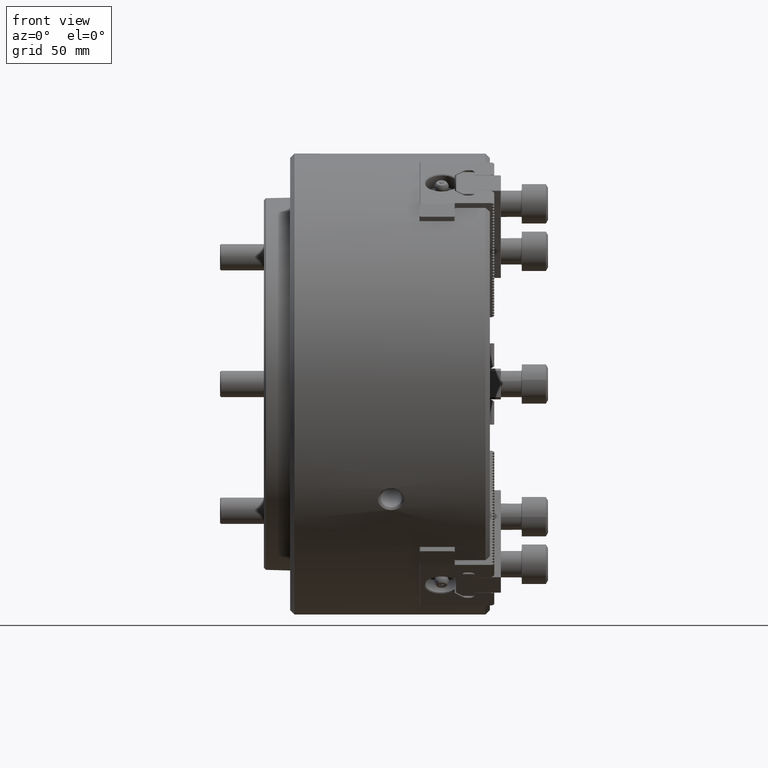
[diagram: clean part render]
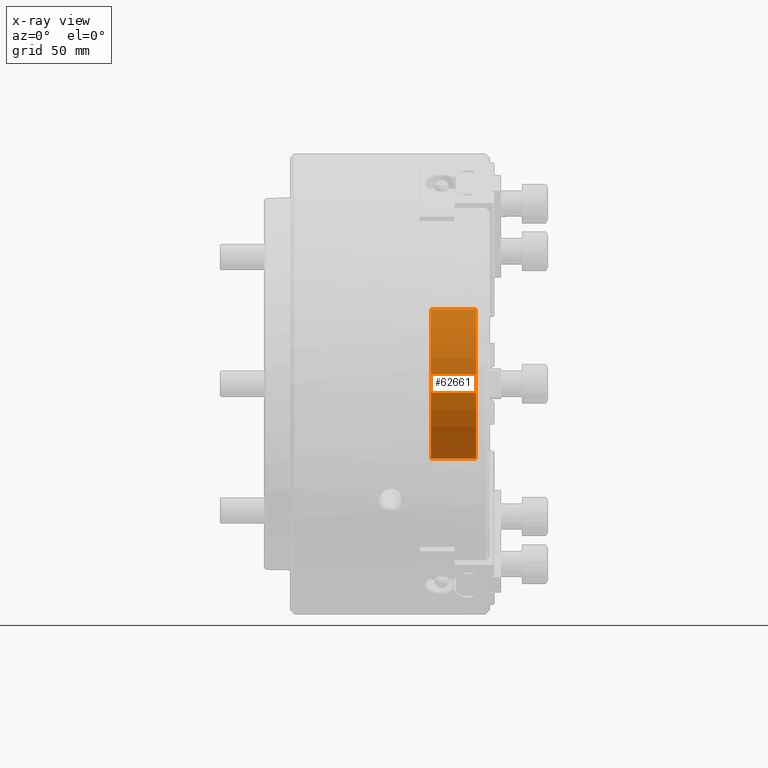
[diagram: x-ray — body ghosted, one internal face saturated and labeled with its STEP entity id]
A machine part, front view, then the same camera in x-ray: the body is ghosted and one INTERNAL B-rep face — a face not visible from any outside direction — is saturated and labeled: STEP entity #62661.
In plain terms, the highlighted cylindrical surface (bore or boss wall) has radius 34 mm, axis along (-1, 0, -0).
Its self-contained STEP definition (entity closure, byte-faithful):
#14626=ORIENTED_EDGE('',*,*,#26932,.F.);
#14627=ORIENTED_EDGE('',*,*,#26663,.T.);
#26663=EDGE_CURVE('',#33067,#33067,#37174,.T.);
#26932=EDGE_CURVE('',#33224,#33224,#37222,.T.);
#33067=VERTEX_POINT('',#83719);
#33224=VERTEX_POINT('',#84313);
#37174=CIRCLE('',#65615,34.);
#37222=CIRCLE('',#65760,34.);
#38634=EDGE_LOOP('',(#14626));
#38635=EDGE_LOOP('',(#14627));
#41683=FACE_BOUND('',#38634,.T.);
#41684=FACE_BOUND('',#38635,.T.);
#44270=CYLINDRICAL_SURFACE('',#65759,34.);
#62661=ADVANCED_FACE('',(#41683,#41684),#44270,.T.);
#65615=AXIS2_PLACEMENT_3D('',#83718,#70910,#70911);
#65759=AXIS2_PLACEMENT_3D('',#84311,#71368,#71369);
#65760=AXIS2_PLACEMENT_3D('',#84312,#71370,#71371);
#70910=DIRECTION('',(1.,0.,0.));
#70911=DIRECTION('',(0.,0.,-1.));
#71368=DIRECTION('',(-1.,4.01685946472933E-17,-5.31127384599706E-17));
#71369=DIRECTION('',(5.3145021955673E-17,0.000804127400808657,-0.999999676689509));
#71370=DIRECTION('',(1.,-4.01685946472933E-17,5.31127384599706E-17));
#71371=DIRECTION('',(5.3145021955673E-17,0.000804127400808657,-0.999999676689509));
#83718=CARTESIAN_POINT('',(-26.9,2.04530503575915E-16,-2.33872776805652E-18));
#83719=CARTESIAN_POINT('',(-26.9,2.04530503575915E-16,-34.));
#84311=CARTESIAN_POINT('',(2.35,-9.43961974211393E-17,1.24814935380931E-16));
#84312=CARTESIAN_POINT('',(-6.3,2.53062146277948E-16,-3.34610252297815E-16));
#84313=CARTESIAN_POINT('',(-6.3,0.0273403316274946,-33.9999890074433));